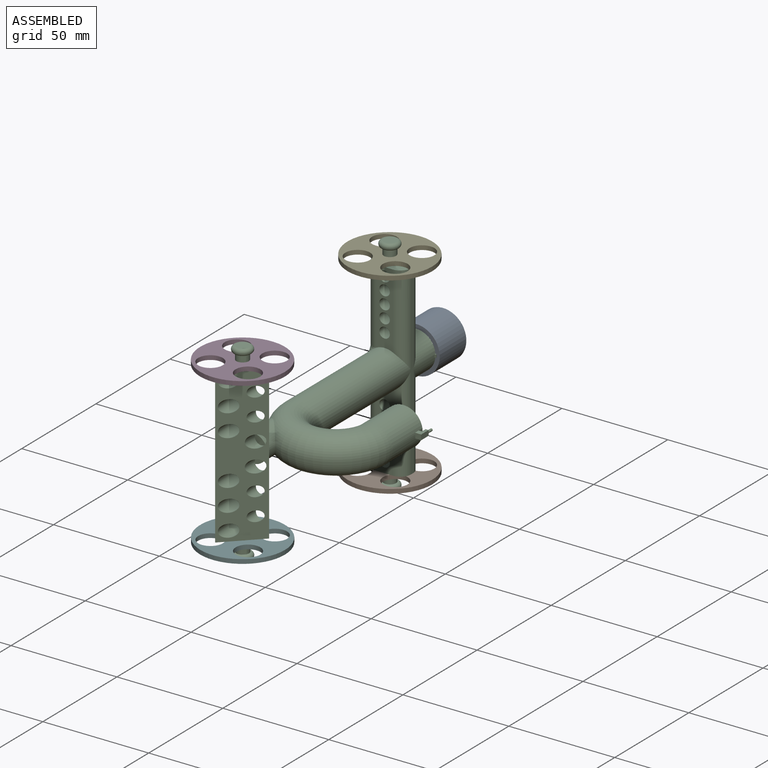
[diagram: assembled view]
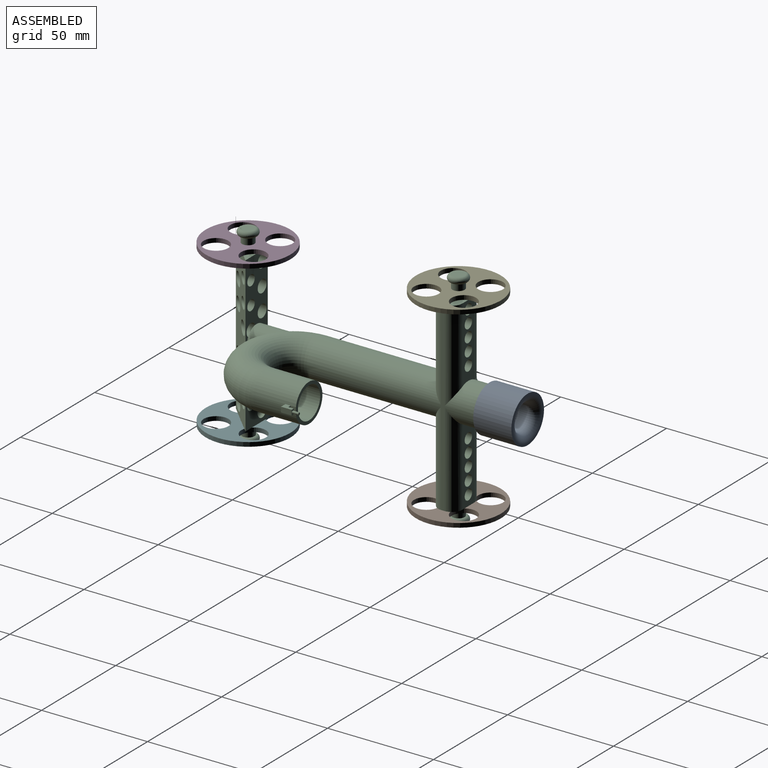
[diagram: assembled view, second angle]
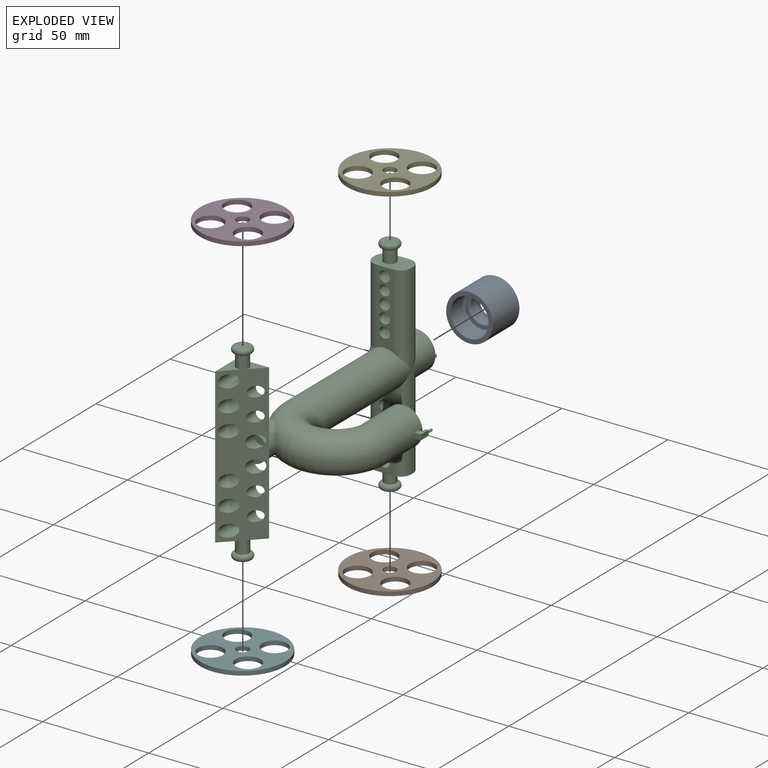
[diagram: exploded view]
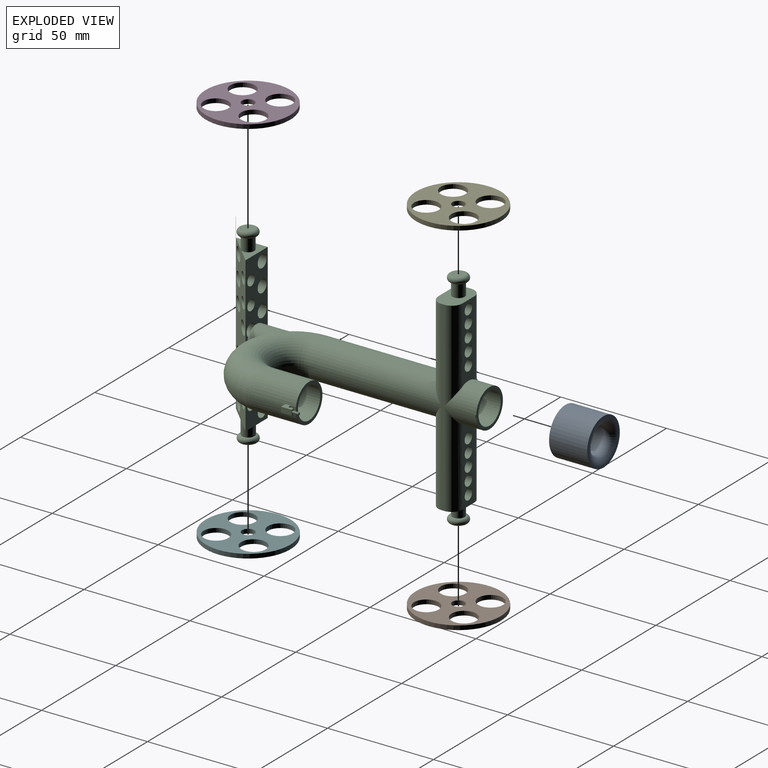
[diagram: exploded view, second angle]
ASSEMBLY  parts=6 mates=5
PART A: 9 faces, bbox 22x18x22 mm
  f0: cylinder r=11mm len=22mm, axis (0,1,0), area 1244.1mm2, adj f1,f2
  f1: plane 22x22mm, normal (0,-1,0), area 66mm2, adj f0,f4
  f2: plane 22x22mm, normal (0,1,0), area 125.7mm2, adj f0,f5
  f3: cylinder r=6mm len=12mm, axis (0,1,0), area 150.8mm2, adj f4,f8
  f4: torus R=10mm, axis (0,-1,0), area 294.3mm2, adj f1,f3
  f5: cylinder r=9mm len=18mm, axis (0,1,0), area 452.4mm2, adj f2,f7
  f6: plane 16.01x16.01mm, normal (0,1,0), area 47.1mm2, adj f7,f8
  f7: bspline ~17.99x17.98mm, area 88.5mm2, adj f5,f6
  f8: bspline ~13.99x13.99mm, area 64.8mm2, adj f3,f6
PART B: 8 faces, bbox 40x40x2 mm
  f0: cylinder r=2.92mm len=5.84mm, axis (0,0,-1), area 36.7mm2, adj f6,f7
  f1: cylinder r=5.83mm len=11.66mm, axis (0,0,-1), area 73.3mm2, adj f6,f7
  f2: cylinder r=5.83mm len=11.66mm, axis (0,0,-1), area 73.3mm2, adj f6,f7
  f3: cylinder r=5.83mm len=11.66mm, axis (0,0,-1), area 73.3mm2, adj f6,f7
  f4: cylinder r=5.83mm len=11.66mm, axis (0,0,-1), area 73.3mm2, adj f6,f7
  f5: cylinder r=20mm len=40mm, axis (0,0,-1), area 251.3mm2, adj f6,f7
  f6: plane 40x40mm, normal (0,0,1), area 802.7mm2, adj f0,f1,f2,f3,f4,f5
  f7: plane 40x40mm, normal (0,0,-1), area 802.7mm2, adj f0,f1,f2,f3,f4,f5
PART C: 95 faces, bbox 125x106x59 mm
  f0: plane 36.43x8mm, normal (1,0,0), area 188.1mm2, adj f19,f22,f23,f24,f25,f27,f53,f92
  f1: plane 35.46x8mm, normal (-1,0,0), area 180.4mm2, adj f17,f18,f20,f21,f26,f27,f55,f85
  f2: plane 2.45x1.42mm, normal (1,0,0), area 2.4mm2, adj f75,f76,f77,f79,f83
  f3: cylinder r=9mm len=20mm, axis (1,0,0), area 1118.7mm2, adj f13,f28,f75,f76,f78,f80,f81
  f4: plane 73x15mm, normal (1,0,0), area 683mm2, adj f5,f6,f38,f40,f41,f42,f43,f44
  f5: plane 88x15mm, normal (-0.71,0,0.71), area 1145.5mm2, adj f4,f6,f40,f41,f42,f43,f44,f45
  f6: plane 82x15mm, normal (0,0,-1), area 1095.2mm2, adj f4,f5,f57,f58,f59,f64
  f7: plane 88x10.74mm, normal (0,0,-1), area 181.1mm2, adj f53,f55,f85,f86,f87,f90,f91,f92
  f8: plane 35.46x8mm, normal (1,0,0), area 180.4mm2, adj f17,f18,f20,f21,f26,f27,f55,f90
  f9: plane 36.43x8mm, normal (-1,0,0), area 188.1mm2, adj f19,f22,f23,f24,f25,f27,f53,f87
  f10: plane 43.05x1.43mm, normal (0,0,1), area 61.6mm2, adj f27,f55,f89,f94
  f11: plane 44.02x1.43mm, normal (0,0,1), area 62.9mm2, adj f27,f53,f88,f93
  f12: plane 4.98x4.12mm, normal (-1,0,0), area 12.7mm2, adj f38,f42
  f13: torus R=18mm, axis (0,1,0), area 2988.1mm2, adj f3,f27,f38
  f14: torus R=18mm, axis (0,-1,0), area 2416mm2, adj f29,f30,f37
  f15: plane 9.5x0.93mm, normal (0,0,1), area 8.8mm2, adj f16,f27,f35
  f16: plane 0.93x0.01mm, normal (1,0,0), area 0mm2, adj f15,f27
  f17: cylinder r=2.5mm len=11.43mm, axis (1,0,0), area 179.5mm2, adj f1,f8
  f18: cylinder r=2.5mm len=11.43mm, axis (1,0,0), area 179.5mm2, adj f1,f8
  f19: cylinder r=2.5mm len=11.43mm, axis (1,0,0), area 179.5mm2, adj f0,f9
  f20: cylinder r=2.5mm len=11.43mm, axis (1,0,0), area 179.5mm2, adj f1,f8
  f21: cylinder r=2.5mm len=11.43mm, axis (1,0,0), area 179.5mm2, adj f1,f8
  f22: cylinder r=2.5mm len=11.43mm, axis (1,0,0), area 179.5mm2, adj f0,f9
  f23: cylinder r=2.5mm len=11.43mm, axis (1,0,0), area 179.5mm2, adj f0,f9
  f24: cylinder r=2.5mm len=11.43mm, axis (1,0,0), area 179.5mm2, adj f0,f9
  f25: cylinder r=2.5mm len=11.43mm, axis (1,0,0), area 179.5mm2, adj f0,f9
  f26: cylinder r=2.5mm len=11.43mm, axis (1,0,0), area 179.5mm2, adj f1,f8
  f27: cylinder r=9mm len=80mm, axis (-1,0,0), area 3946mm2, adj f0,f1,f8,f9,f10,f11,f13,f15
  f28: plane 18x17.95mm, normal (1,0,0), area 77.5mm2, adj f3,f29,f80,f81
  f29: cylinder r=7.5mm len=20mm, axis (-1,0,0), area 942.5mm2, adj f14,f28
  f30: cylinder r=7.5mm len=80mm, axis (1,0,0), area 3769.9mm2, adj f14,f31
  f31: plane 18.55x18mm, normal (1,0,0), area 78.5mm2, adj f27,f30,f32,f33,f34
  f32: plane 1.4x0.5mm, normal (0,0,1), area 0.7mm2, adj f31,f33,f34,f35
  f33: plane 0.58x0.5mm, normal (0,-1,0), area 0.3mm2, adj f27,f31,f32,f35
  f34: plane 0.58x0.5mm, normal (0,1,0), area 0.3mm2, adj f27,f31,f32,f35
  f35: plane 1.4x0.58mm, normal (-1,0,0), area 0.8mm2, adj f15,f27,f32,f33,f34
  f36: plane 13x13mm, normal (1,0,0), area 132.7mm2, adj f37
  f37: cylinder r=6.5mm len=22.76mm, axis (1,0,0), area 559.5mm2, adj f14,f36
  f38: cylinder r=6.5mm len=18.65mm, axis (1,0,0), area 526.9mm2, adj f4,f12,f13,f39
  f39: plane 4.98x4.12mm, normal (-1,0,0), area 12.7mm2, adj f38,f46
  f40: cylinder r=2.5mm len=6.28mm, axis (1,0,0), area 58.9mm2, adj f4,f5
  f41: cylinder r=3mm len=14.29mm, axis (1,0,0), area 212.1mm2, adj f4,f5
  f42: cylinder r=3mm len=6.76mm, axis (1,0,0), area 70.7mm2, adj f4,f5,f12
  f43: cylinder r=3mm len=14.29mm, axis (1,0,0), area 212.1mm2, adj f4,f5
  f44: cylinder r=2.5mm len=6.28mm, axis (1,0,0), area 58.9mm2, adj f4,f5
  f45: cylinder r=3mm len=14.29mm, axis (1,0,0), area 212.1mm2, adj f4,f5
  f46: cylinder r=3mm len=6.76mm, axis (1,0,0), area 70.7mm2, adj f4,f5,f39
  f47: cylinder r=2.5mm len=6.28mm, axis (1,0,0), area 58.9mm2, adj f4,f5
  f48: cylinder r=2.5mm len=6.28mm, axis (1,0,0), area 58.9mm2, adj f4,f5
  f49: cylinder r=3mm len=14.29mm, axis (1,0,0), area 212.1mm2, adj f4,f5
  f50: cylinder r=3mm len=14.29mm, axis (1,0,0), area 212.1mm2, adj f4,f5
  f51: cylinder r=3mm len=14.29mm, axis (1,0,0), area 212.1mm2, adj f4,f5
  f52: cylinder r=2.92mm len=6mm, axis (0,-1,0), area 110.1mm2, adj f53,f66
  f53: plane 18x11.43mm, normal (0,-1,0), area 157.5mm2, adj f0,f7,f9,f11,f52,f87,f88,f92
  f54: cylinder r=2.92mm len=6mm, axis (0,1,0), area 110.1mm2, adj f55,f70
  f55: plane 18x11.43mm, normal (0,1,0), area 157.5mm2, adj f1,f7,f8,f10,f54,f85,f89,f90
  f56: cylinder r=3mm len=6mm, axis (0,-1,0), area 100.9mm2, adj f5,f57,f72
  f57: plane 15x15mm, normal (0,-1,0), area 84.5mm2, adj f4,f5,f6,f56
  f58: plane 15x14.99mm, normal (0,1,0), area 85.9mm2, adj f4,f5,f6,f59,f60
  f59: cylinder r=11.6mm len=9mm, axis (0,1,0), area 0.1mm2, adj f5,f6,f58,f64
  f60: cylinder r=2.92mm len=6mm, axis (0,1,0), area 99.5mm2, adj f5,f58,f63
  f61: cylinder r=2.92mm len=3mm, axis (0,-1,0), area 5.3mm2, adj f5,f62,f63
  f62: plane 6x6mm, normal (0,1,0), area 28.1mm2, adj f5,f61,f74
  f63: plane 6x6mm, normal (0,-1,0), area 1.5mm2, adj f60,f61,f74
  f64: plane 0.02x0.01mm, normal (0,1,0), area 0mm2, adj f5,f6,f59
  f65: plane 6x6mm, normal (0,-1,0), area 28.3mm2, adj f73
  f66: plane 6x6mm, normal (0,1,0), area 1.5mm2, adj f52,f73
  f67: plane 6x6mm, normal (0,-1,0), area 28.3mm2, adj f72
  f68: plane 1.41x1.41mm, normal (0,1,0), area 0.2mm2, adj f5,f72
  f69: plane 6x6mm, normal (0,1,0), area 28.3mm2, adj f71
  f70: plane 6x6mm, normal (0,-1,0), area 1.5mm2, adj f54,f71
  f71: torus R=3mm, axis (0,1,0), area 117.1mm2, adj f69,f70
  f72: torus R=3mm, axis (0,-1,0), area 117.1mm2, adj f56,f67,f68
  f73: torus R=3mm, axis (0,-1,0), area 117.1mm2, adj f65,f66
  f74: torus R=3mm, axis (0,1,0), area 117.1mm2, adj f62,f63
  f75: plane 5x2.83mm, normal (0,-1,0), area 10.6mm2, adj f2,f3,f77,f78,f79,f82
  f76: plane 5x2.9mm, normal (0,1,0), area 10.8mm2, adj f2,f3,f77,f78,f79,f82
  f77: plane 5x2.45mm, normal (0,0,1), area 12.3mm2, adj f2,f75,f76,f78
  f78: plane 2.9x2.45mm, normal (-1,0,0), area 6.9mm2, adj f3,f75,f76,f77
  f79: plane 2.5x2.45mm, normal (0,0,-1), area 6.1mm2, adj f2,f75,f76,f82
  f80: plane 2.5x0.07mm, normal (0,1,0), area 0.2mm2, adj f3,f28,f81,f82
  f81: plane 2.5x2.45mm, normal (0,0,1), area 6.1mm2, adj f3,f28,f80,f82
  f82: plane 2.45x1.48mm, normal (1,0,0), area 3.6mm2, adj f75,f76,f79,f80,f81
  f83: cylinder r=0.59mm len=3mm, axis (-1,0,0), area 11.2mm2, adj f2,f84
  f84: plane 1.18x1.18mm, normal (1,0,0), area 1.1mm2, adj f83
  f85: cylinder r=5mm len=35.46mm, axis (0,-1,0), area 278.5mm2, adj f1,f7,f55,f86
  f86: bspline ~17.82x5.37mm, area 63.4mm2, adj f7,f27,f85,f87
  f87: cylinder r=5mm len=36.43mm, axis (0,-1,0), area 286.1mm2, adj f7,f9,f53,f86
  f88: cylinder r=5mm len=44.02mm, axis (0,1,0), area 315.9mm2, adj f9,f11,f27,f53
  f89: cylinder r=5mm len=43.05mm, axis (0,1,0), area 308.3mm2, adj f1,f10,f27,f55
  f90: cylinder r=5mm len=35.46mm, axis (0,1,0), area 278.5mm2, adj f7,f8,f55,f91
  f91: bspline ~18.59x5.57mm, area 63.4mm2, adj f7,f27,f90,f92
  f92: cylinder r=5mm len=36.43mm, axis (0,1,0), area 286.1mm2, adj f0,f7,f53,f91
  f93: cylinder r=5mm len=44.02mm, axis (0,-1,0), area 315.9mm2, adj f0,f11,f27,f53
  f94: cylinder r=5mm len=43.05mm, axis (0,-1,0), area 308.3mm2, adj f8,f10,f27,f55
PART D: same geometry as B
PART E: same geometry as B
PART F: same geometry as B
PLACE A rot(axis=(-0.71,0,-0.71),180deg) t=(40.17,-2.06,59.79)mm
PLACE B t=(36.29,-17.78,12.76)mm
PLACE C rot(axis=(0.58,0.58,0.58),120deg) t=(37.79,-12.06,59.24)mm
PLACE D t=(36.29,-117.12,96.74)mm
PLACE E t=(36.29,-17.78,103.76)mm
PLACE F t=(36.29,-117.06,20.74)mm
MATE cylindrical F.f5 <-> C.f56  axis (0,0,1) through (36.29,-117.06,22.74)mm
MATE fastened A.f0 <-> C.f27  axis (0,-1,0) through (37.79,-2.06,59.24)mm
MATE slider B.f5 <-> C.f52  axis (0,0,-1) through (36.29,-17.78,12.76)mm
MATE slider E.f0 <-> C.f52  axis (0,0,1) through (36.29,-17.78,105.76)mm
MATE slider D.f0 <-> C.f59  axis (0,0,1) through (36.29,-117.12,98.74)mm
